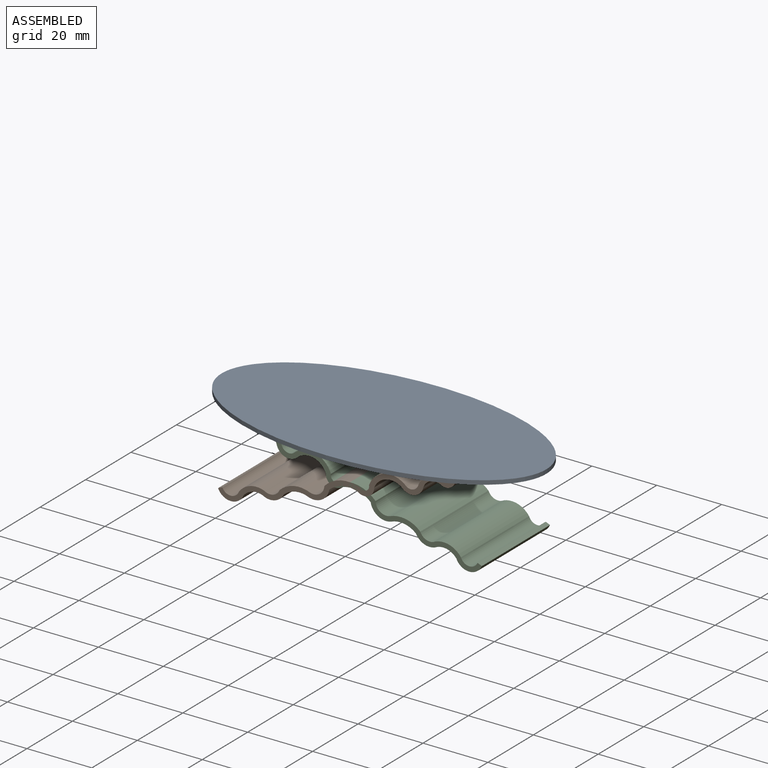
[diagram: assembled view]
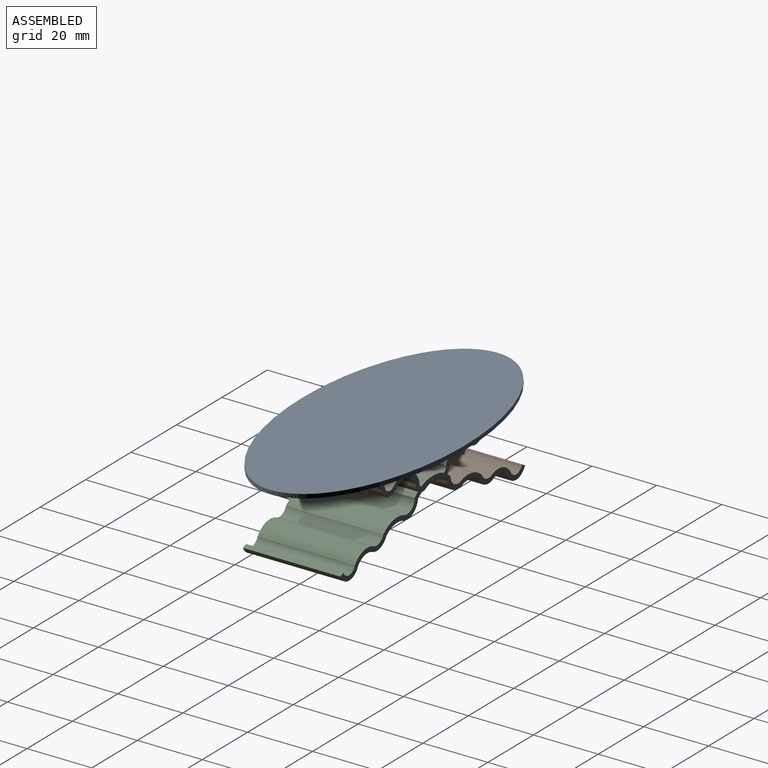
[diagram: assembled view, second angle]
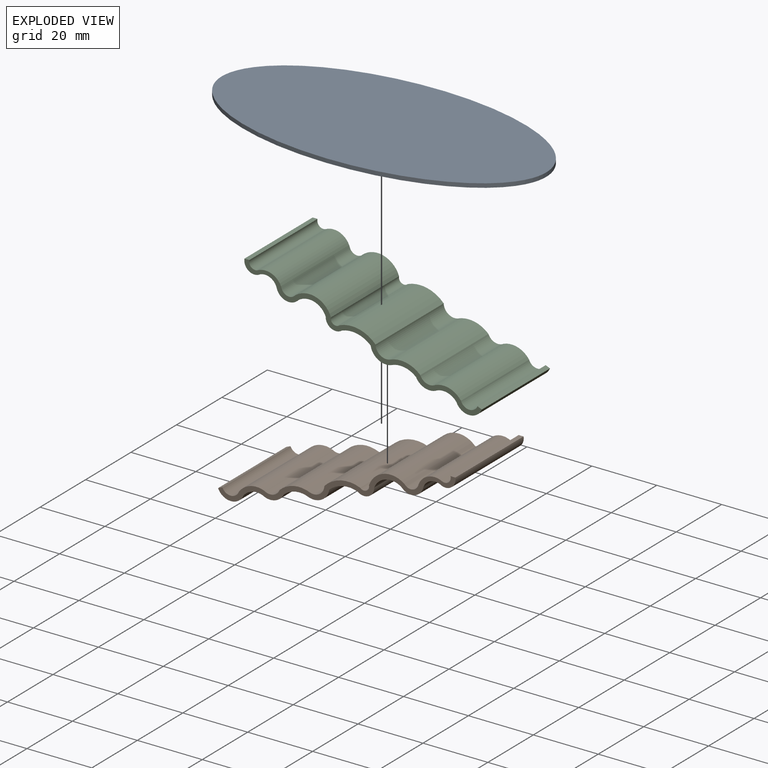
[diagram: exploded view]
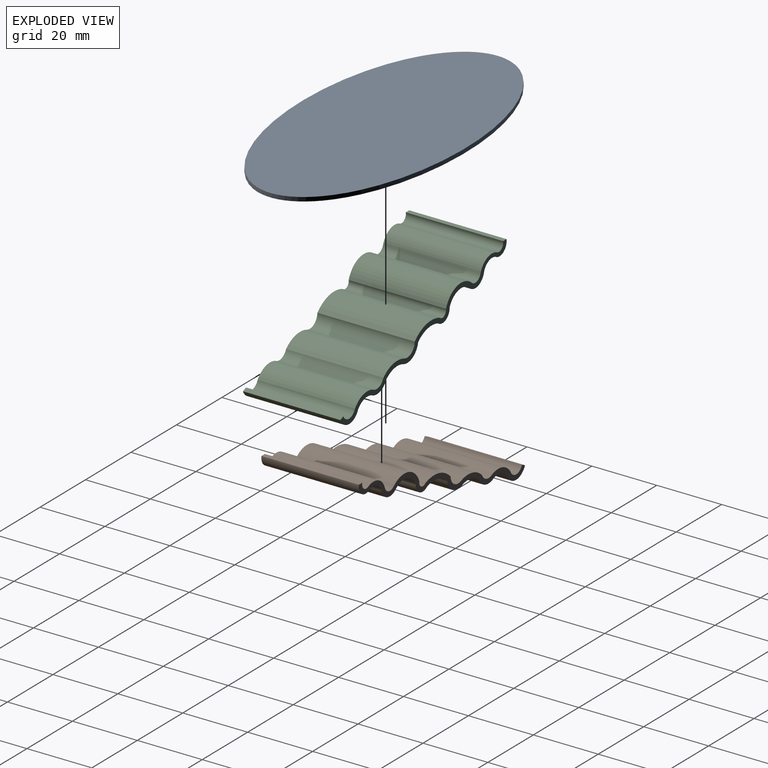
[diagram: exploded view, second angle]
ASSEMBLY  parts=3 mates=2
PART A: 23 faces, bbox 100x50x1.3 mm
  f0: plane 100x50mm, normal (0,0,-1), area 3918mm2, adj f1,f3,f4,f5,f6,f8,f9,f10
  f1: extruded ~100x50mm, area 302.8mm2, adj f0,f2
  f2: plane 100x50mm, normal (0,0,1), area 3927mm2, adj f1
  f3: plane 1.5x0.05mm, normal (-1,0,0), area 0.1mm2, adj f0,f4,f6,f7
  f4: plane 1.5x0.05mm, normal (0,1,0), area 0.1mm2, adj f0,f3,f5,f7
  f5: plane 1.5x0.05mm, normal (1,0,0), area 0.1mm2, adj f0,f4,f6,f7
  f6: plane 1.5x0.05mm, normal (0,-1,0), area 0.1mm2, adj f0,f3,f5,f7
  f7: plane 1.5x1.5mm, normal (0,0,-1), area 2.3mm2, adj f3,f4,f5,f6
  f8: plane 1.5x0.05mm, normal (0,-1,0), area 0.1mm2, adj f0,f9,f11,f12
  f9: plane 1.5x0.05mm, normal (-1,0,0), area 0.1mm2, adj f0,f8,f10,f12
  f10: plane 1.5x0.05mm, normal (0,1,0), area 0.1mm2, adj f0,f9,f11,f12
  f11: plane 1.5x0.05mm, normal (1,0,0), area 0.1mm2, adj f0,f8,f10,f12
  f12: plane 1.5x1.5mm, normal (0,0,-1), area 2.3mm2, adj f8,f9,f10,f11
  f13: plane 1.5x0.05mm, normal (0,1,0), area 0.1mm2, adj f0,f14,f16,f17
  f14: plane 1.5x0.05mm, normal (1,0,0), area 0.1mm2, adj f0,f13,f15,f17
  f15: plane 1.5x0.05mm, normal (0,-1,0), area 0.1mm2, adj f0,f14,f16,f17
  f16: plane 1.5x0.05mm, normal (-1,0,0), area 0.1mm2, adj f0,f13,f15,f17
  f17: plane 1.5x1.5mm, normal (0,0,-1), area 2.3mm2, adj f13,f14,f15,f16
  f18: plane 1.5x0.05mm, normal (1,0,0), area 0.1mm2, adj f0,f19,f21,f22
  f19: plane 1.5x0.05mm, normal (0,-1,0), area 0.1mm2, adj f0,f18,f20,f22
  f20: plane 1.5x0.05mm, normal (-1,0,0), area 0.1mm2, adj f0,f19,f21,f22
  f21: plane 1.5x0.05mm, normal (0,1,0), area 0.1mm2, adj f0,f18,f20,f22
  f22: plane 1.5x1.5mm, normal (0,0,-1), area 2.3mm2, adj f18,f19,f20,f21
PART B: 26 faces, bbox 73.2x30x25.1 mm
  f0: cylinder r=2.39mm len=30mm, axis (0,1,0), area 128.6mm2, adj f1,f23,f24,f25
  f1: cylinder r=7.03mm len=30mm, axis (0,1,0), area 424.1mm2, adj f0,f2,f24,f25
  f2: cylinder r=1.6mm len=30mm, axis (0,1,0), area 123.2mm2, adj f1,f3,f24,f25
  f3: cylinder r=10.03mm len=30mm, axis (0,1,0), area 360mm2, adj f2,f4,f24,f25
  f4: cylinder r=3.35mm len=30mm, axis (0,1,0), area 183.7mm2, adj f3,f5,f24,f25
  f5: cylinder r=8.71mm len=30mm, axis (0,1,0), area 306mm2, adj f4,f6,f24,f25
  f6: cylinder r=3.18mm len=30mm, axis (0,1,0), area 167.5mm2, adj f5,f7,f24,f25
  f7: cylinder r=6.62mm len=30mm, axis (0,1,0), area 265mm2, adj f6,f8,f24,f25
  f8: cylinder r=2.76mm len=30mm, axis (0,1,0), area 197mm2, adj f7,f9,f24,f25
  f9: plane 30x1.32mm, normal (-0.39,0,0.92), area 43mm2, adj f8,f10,f24,f25
  f10: cylinder r=4.26mm len=30mm, axis (0,1,0), area 298.3mm2, adj f9,f11,f24,f25
  f11: cylinder r=5.12mm len=30mm, axis (0,1,0), area 196.4mm2, adj f10,f12,f24,f25
  f12: cylinder r=4.68mm len=30mm, axis (0,1,0), area 230.9mm2, adj f11,f13,f24,f25
  f13: cylinder r=7.21mm len=30mm, axis (0,1,0), area 247mm2, adj f12,f14,f24,f25
  f14: cylinder r=4.85mm len=30mm, axis (0,1,0), area 249.8mm2, adj f13,f15,f24,f25
  f15: cylinder r=8.53mm len=30mm, axis (0,1,0), area 284.3mm2, adj f14,f16,f24,f25
  f16: cylinder r=3.1mm len=30mm, axis (0,1,0), area 212.4mm2, adj f15,f17,f24,f25
  f17: cylinder r=5.53mm len=30mm, axis (0,1,0), area 327.6mm2, adj f16,f18,f24,f25
  f18: cylinder r=3.89mm len=30mm, axis (0,1,0), area 216.6mm2, adj f17,f19,f24,f25
  f19: cylinder r=3.77mm len=30mm, axis (0,1,0), area 203.6mm2, adj f18,f20,f24,f25
  f20: cylinder r=3.11mm len=30mm, axis (0,1,0), area 217mm2, adj f19,f21,f24,f25
  f21: plane 30x1.5mm, normal (0,0,1), area 45mm2, adj f20,f22,f24,f25
  f22: cylinder r=1.87mm len=30mm, axis (0,1,0), area 122.7mm2, adj f21,f23,f24,f25
  f23: cylinder r=5.27mm len=30mm, axis (0,1,0), area 280.5mm2, adj f0,f22,f24,f25
  f24: plane 73.18x25.06mm, normal (0,-1,0), area 130.3mm2, adj f0,f1,f2,f3,f4,f5,f6,f7
  f25: plane 73.18x25.06mm, normal (0,1,0), area 130.3mm2, adj f0,f1,f2,f3,f4,f5,f6,f7
PART C: same geometry as B
PLACE A at identity
PLACE B t=(-229.53,585,39.8)mm
PLACE C rot(axis=(0,0,1),180deg) t=(229.53,-585,39.8)mm
MATE fastened B.f21 <-> A.f0  axis (0,0,1) through (31.75,-15,0)mm
MATE fastened C.f21 <-> A.f0  axis (0,0,1) through (-31.75,15,0)mm
